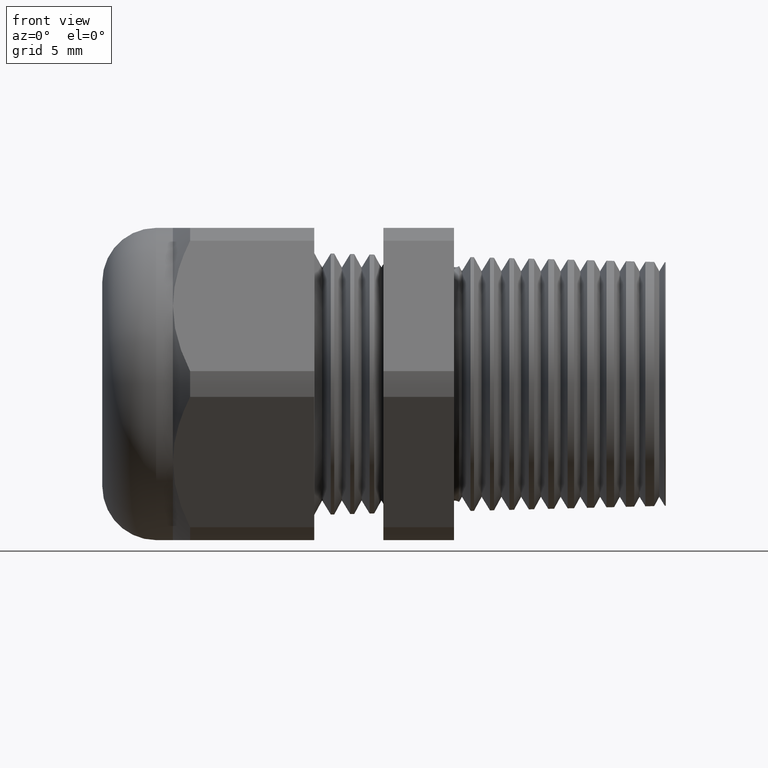
[diagram: clean part render]
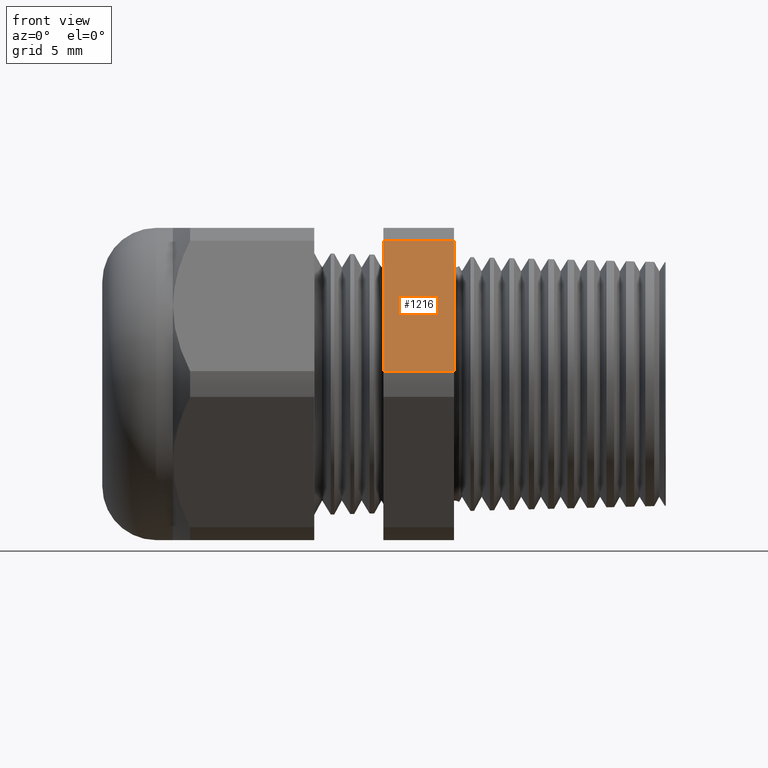
[diagram: same view with one face highlighted and labeled with its STEP entity id]
A machine part, front view. The second image highlights one B-rep face of the part: STEP entity #1216.
In plain terms, the highlighted planar face has unit normal (0, -0.866, 0.5).
Its self-contained STEP definition (entity closure, byte-faithful):
#1189 = VERTEX_POINT ( 'NONE', #3382 ) ;
#1191 = EDGE_CURVE ( 'NONE', #1189, #1192, #3381, .T. ) ;
#1192 = VERTEX_POINT ( 'NONE', #3377 ) ;
#1203 = EDGE_CURVE ( 'NONE', #1271, #1267, #3422, .T. ) ;
#1216 = ADVANCED_FACE ( 'NONE', ( #3404 ), #3403, .T. ) ;
#1217 = ORIENTED_EDGE ( 'NONE', *, *, #1237, .T. ) ;
#1218 = ORIENTED_EDGE ( 'NONE', *, *, #1191, .F. ) ;
#1219 = ORIENTED_EDGE ( 'NONE', *, *, #1220, .F. ) ;
#1220 = EDGE_CURVE ( 'NONE', #1267, #1189, #3398, .T. ) ;
#1221 = ORIENTED_EDGE ( 'NONE', *, *, #1203, .F. ) ;
#1237 = EDGE_CURVE ( 'NONE', #1271, #1192, #3447, .T. ) ;
#1239 = EDGE_LOOP ( 'NONE', ( #1217, #1218, #1219, #1221 ) ) ;
#1267 = VERTEX_POINT ( 'NONE', #3425 ) ;
#1271 = VERTEX_POINT ( 'NONE', #3475 ) ;
#3377 = CARTESIAN_POINT ( 'NONE',  ( -0.5068503937007874400, -0.2719366022533516400, 0.3989919884595459800 ) ) ;
#3378 = DIRECTION ( 'NONE',  ( 0.0000000000000000000, 0.4999999999999994400, 0.8660254037844389300 ) ) ;
#3379 = VECTOR ( 'NONE', #3378, 39.37007874015748100 ) ;
#3380 = CARTESIAN_POINT ( 'NONE',  ( -0.5068503937007874400, -0.1592210506462312400, 0.5942210506462303200 ) ) ;
#3381 = LINE ( 'NONE', #3380, #3379 ) ;
#3382 = CARTESIAN_POINT ( 'NONE',  ( -0.5068503937007874400, -0.4815054990391102700, 0.03600801154045355600 ) ) ;
#3395 = DIRECTION ( 'NONE',  ( -1.000000000000000000, 0.0000000000000000000, 0.0000000000000000000 ) ) ;
#3396 = VECTOR ( 'NONE', #3395, 39.37007874015748100 ) ;
#3397 = CARTESIAN_POINT ( 'NONE',  ( 0.2800000000000000300, -0.4815054990391102700, 0.03600801154045355600 ) ) ;
#3398 = LINE ( 'NONE', #3397, #3396 ) ;
#3399 = DIRECTION ( 'NONE',  ( 0.0000000000000000000, -0.4999999999999994400, -0.8660254037844389300 ) ) ;
#3400 = DIRECTION ( 'NONE',  ( 0.0000000000000000000, -0.8660254037844390400, 0.4999999999999995000 ) ) ;
#3401 = CARTESIAN_POINT ( 'NONE',  ( 0.2800000000000000300, -0.4815054990391102700, 0.03600801154045359800 ) ) ;
#3402 = AXIS2_PLACEMENT_3D ( 'NONE', #3401, #3400, #3399 ) ;
#3403 = PLANE ( 'NONE',  #3402 ) ;
#3404 = FACE_OUTER_BOUND ( 'NONE', #1239, .T. ) ;
#3419 = DIRECTION ( 'NONE',  ( 0.0000000000000000000, -0.4999999999999994400, -0.8660254037844389300 ) ) ;
#3420 = VECTOR ( 'NONE', #3419, 39.37007874015748100 ) ;
#3421 = CARTESIAN_POINT ( 'NONE',  ( -0.3100000000000000000, -0.1592210506462312400, 0.5942210506462303200 ) ) ;
#3422 = LINE ( 'NONE', #3421, #3420 ) ;
#3425 = CARTESIAN_POINT ( 'NONE',  ( -0.3100000000000000000, -0.4815054990391102700, 0.03600801154045355600 ) ) ;
#3439 = DIRECTION ( 'NONE',  ( -1.000000000000000000, 0.0000000000000000000, 0.0000000000000000000 ) ) ;
#3440 = VECTOR ( 'NONE', #3439, 39.37007874015748100 ) ;
#3441 = CARTESIAN_POINT ( 'NONE',  ( 0.2800000000000000300, -0.2719366022533516400, 0.3989919884595459800 ) ) ;
#3447 = LINE ( 'NONE', #3441, #3440 ) ;
#3475 = CARTESIAN_POINT ( 'NONE',  ( -0.3100000000000000000, -0.2719366022533516400, 0.3989919884595459800 ) ) ;